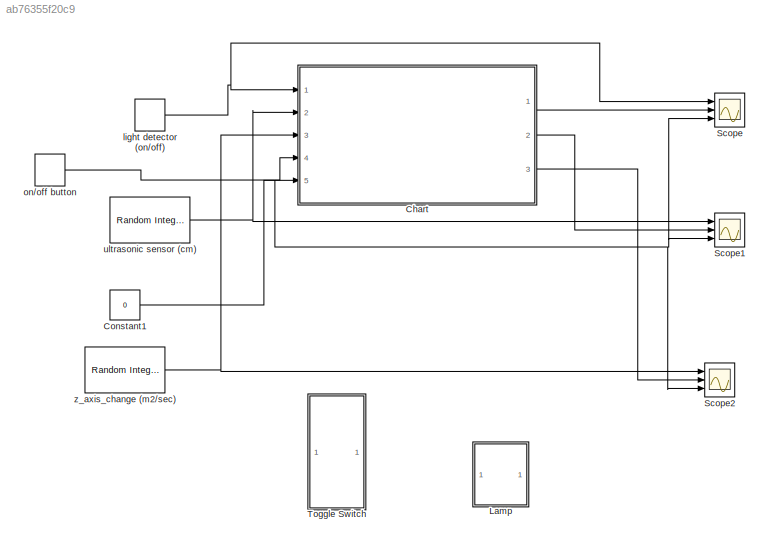
MODEL slx_ab76355f20c9
KIND model
CONFIG AbsTol = auto
CONFIG FixedStep = auto
CONFIG MaxStep = auto
CONFIG MinStep = auto
CONFIG RelTol = 1e-3
CONFIG SampleTimeConstraint = Unconstrained
CONFIG Solver = VariableStepAuto
CONFIG SolverMode = Auto
CONFIG SolverName = VariableStepAuto
CONFIG StartTime = 0.0
CONFIG StopTime = 10.0
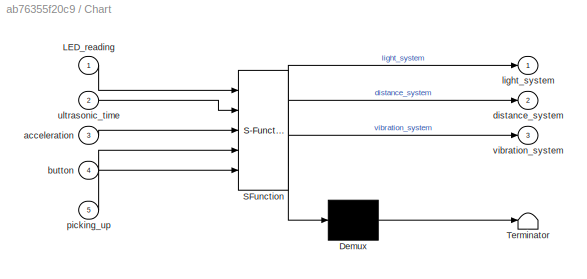
BLOCK [SubSystem] Chart
  ErrorFcn = Stateflow.Translate.translate
  PermitHierarchicalResolution = ExplicitOnly
  Ports = [5, 3]
  RequestExecContextInheritance = off
  SFBlockType = Chart
  TreatAsAtomicUnit = on
  Variant = off
BLOCK [Demux] Chart/ Demux 
  Outputs = 1
  Ports = [1, 1]
BLOCK [S-Function] Chart/ SFunction 
  EnableBusSupport = on
  FunctionName = sf_sfun
  PortCounts = [5 4]
  Ports = [5, 4]
  SFunctionDeploymentMode = off
  Tag = Stateflow S-Function stateflow1 3
BLOCK [Terminator] Chart/ Terminator 
BLOCK [Inport] Chart/LED_reading
  IconDisplay = Port number
BLOCK [Inport] Chart/acceleration
  IconDisplay = Port number
  Port = 3
BLOCK [Inport] Chart/button
  IconDisplay = Port number
  Port = 4
BLOCK [Outport] Chart/distance_system
  IconDisplay = Port number
  Port = 2
BLOCK [Outport] Chart/light_system
  IconDisplay = Port number
BLOCK [Inport] Chart/picking_up
  IconDisplay = Port number
  Port = 5
BLOCK [Inport] Chart/ultrasonic_time
  IconDisplay = Port number
  Port = 2
BLOCK [Outport] Chart/vibration_system
  IconDisplay = Port number
  Port = 3
BLOCK [Constant] Constant1
  Value = 0
BLOCK [SubSystem] Lamp
  DialogController = hmiCreateDDGDialog
  IsWebBlock = on
  MaskHideContents = on
  Ports = []
  RequestExecContextInheritance = off
  Variant = off
BLOCK [Scope] Scope
  NumInputPorts = 3
  Ports = [3]
  ScopeSpecificationString = Simulink.scopes.TimeScopeBlockCfg('CurrentConfiguration', extmgr.ConfigurationSet(extmgr.Configuration('Core','General UI',true),extmgr.Configuration('Core','Source UI',true),extmgr.Configuration('Sources','WiredSimulink',true),extmgr.Configuration('Visuals','Time Domain',true,'SerializedDisplays',{struct('MinYLimReal','-0.125','MaxYLimReal','1.125','YLabelReal','','MinYLimMag','0.00000','MaxYLimM...<+2717ch>
BLOCK [Scope] Scope1
  NumInputPorts = 3
  Ports = [3]
  ScopeSpecificationString = Simulink.scopes.TimeScopeBlockCfg('CurrentConfiguration', extmgr.ConfigurationSet(extmgr.Configuration('Core','General UI',true),extmgr.Configuration('Core','Source UI',true),extmgr.Configuration('Sources','WiredSimulink',true,'DataLoggingVariableName','ScopeData1'),extmgr.Configuration('Visuals','Time Domain',true,'SerializedDisplays',{struct('MinYLimReal','-0.875','MaxYLimReal','7.875','YLabelRe...<+2788ch>
BLOCK [Scope] Scope2
  NumInputPorts = 3
  Ports = [3]
  ScopeSpecificationString = Simulink.scopes.TimeScopeBlockCfg('CurrentConfiguration', extmgr.ConfigurationSet(extmgr.Configuration('Core','General UI',true),extmgr.Configuration('Core','Source UI',true),extmgr.Configuration('Sources','WiredSimulink',true,'DataLoggingVariableName','ScopeData2'),extmgr.Configuration('Visuals','Time Domain',true,'SerializedDisplays',{struct('MinYLimReal','-2.25','MaxYLimReal','20.25','YLabelRea...<+2788ch>
BLOCK [SubSystem] Toggle Switch
  DialogController = hmiCreateDDGDialog
  IsWebBlock = on
  MaskHideContents = on
  Ports = []
  RequestExecContextInheritance = off
  Variant = off
BLOCK [DiscretePulseGenerator] light detector (on//off)
  Period = 3
  Ports = [0, 1]
  PulseType = Time based
  PulseWidth = 50
BLOCK [DiscretePulseGenerator] on//off button
  Period = 10
  Ports = [0, 1]
  PulseType = Time based
  PulseWidth = 50
BLOCK [Reference] ultrasonic sensor (cm)  REF=commrandsrc3/Random Integer
Generator
  Ports = [0, 1]
  SourceBlock = commrandsrc3/Random Integer\nGenerator
  SourceType = Random Integer Generator
BLOCK [Reference] z_axis_change (m2//sec)  REF=commrandsrc3/Random Integer
Generator
  Ports = [0, 1]
  SourceBlock = commrandsrc3/Random Integer\nGenerator
  SourceType = Random Integer Generator
LINE Chart:1 -> Scope:2
LINE Chart:2 -> Scope1:2
LINE Chart:3 -> Scope2:2
LINE Constant1:1 -> Chart:5
NET light detector (on//off):1 -> Chart:1, Scope:1
NET on//off button:1 -> Chart:4, Scope1:3, Scope2:3, Scope:3
NET ultrasonic sensor (cm):1 -> Chart:2, Scope1:1
NET z_axis_change (m2//sec):1 -> Chart:3, Scope2:1
note: NET lines group one-source signal fan-out (src -> all destinations, sorted); 1:1 wires keep LINE
CHART Chart states=13 transitions=13
  STATE_LABEL 'Power_On'
  STATE_LABEL 'dropping_detection'
  STATE_LABEL 'not_dropped\nentry : t=1;\nduring: vibration_system = 0;\n'
  STATE_LABEL 'dropped\n\n'
  STATE_LABEL 'picked\nentry: adjust_output();\nduring: adjust_output();\n'
  STATE_LABEL 'not_picked\nentry: vibration_system =adjust_vibration_intensity(1);;\nduring: vibration_system =adjust_vibration_intensity(1);'
  STATE_LABEL '[picking_up==0]'
  STATE_LABEL '[picking_up==1]'
  STATE_LABEL '[acceleration >10]'
  STATE_LABEL '[acceleration<=10]'
  STATE_LABEL 'light_detection'
  STATE_LABEL 'LED_off\nduring:light_system=0;'
  STATE_LABEL 'LED_on\nduring:light_system=1;'
  STATE_LABEL '[LED_reading==1]'
  STATE_LABEL '[LED_reading==0]'
  STATE_LABEL 'distance_detection\nduring: distance_system = (ultrasonic_time/2) * (340/60);'
  STATE_LABEL 'dropping_detection'
  STATE_LABEL 'not_dropped\nentry : t=1;\nduring: vibration_system = 0;\n'
  STATE_LABEL 'dropped\n\n'
  STATE_LABEL 'picked\nentry: adjust_output();\nduring: adjust_output();\n'
  STATE_LABEL 'not_picked\nentry: vibration_system =adjust_vibration_intensity(1);;\nduring: vibration_system =adjust_vibration_intensity(1);'
  STATE_LABEL '[picking_up==0]'
  STATE_LABEL '[picking_up==1]'
  STATE_LABEL '[acceleration >10]'
  STATE_LABEL '[acceleration<=10]'
  STATE_LABEL 'not_dropped\nentry : t=1;\nduring: vibration_system = 0;\n'
  STATE_LABEL 'dropped\n\n'
  STATE_LABEL 'picked\nentry: adjust_output();\nduring: adjust_output();\n'
  STATE_LABEL 'not_picked\nentry: vibration_system =adjust_vibration_intensity(1);;\nduring: vibration_system =adjust_vibration_intensity(1);'
  STATE_LABEL '[picking_up==0]'
  STATE_LABEL '[picking_up==1]'
  STATE_LABEL 'picked\nentry: adjust_output();\nduring: adjust_output();\n'
  STATE_LABEL 'not_picked\nentry: vibration_system =adjust_vibration_intensity(1);;\nduring: vibration_system =adjust_vibration_intensity(1);'
  STATE_LABEL 'light_detection'
  STATE_LABEL 'LED_off\nduring:light_system=0;'
  STATE_LABEL 'LED_on\nduring:light_system=1;'
  STATE_LABEL '[LED_reading==1]'
  STATE_LABEL '[LED_reading==0]'
  STATE_LABEL 'LED_off\nduring:light_system=0;'
  STATE_LABEL 'LED_on\nduring:light_system=1;'
